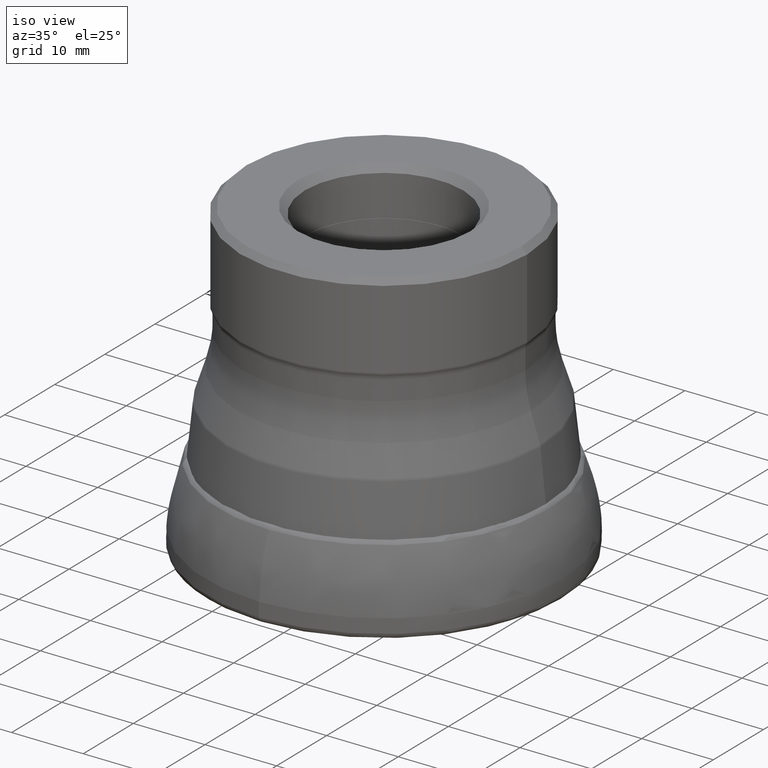
[diagram: clean part render]
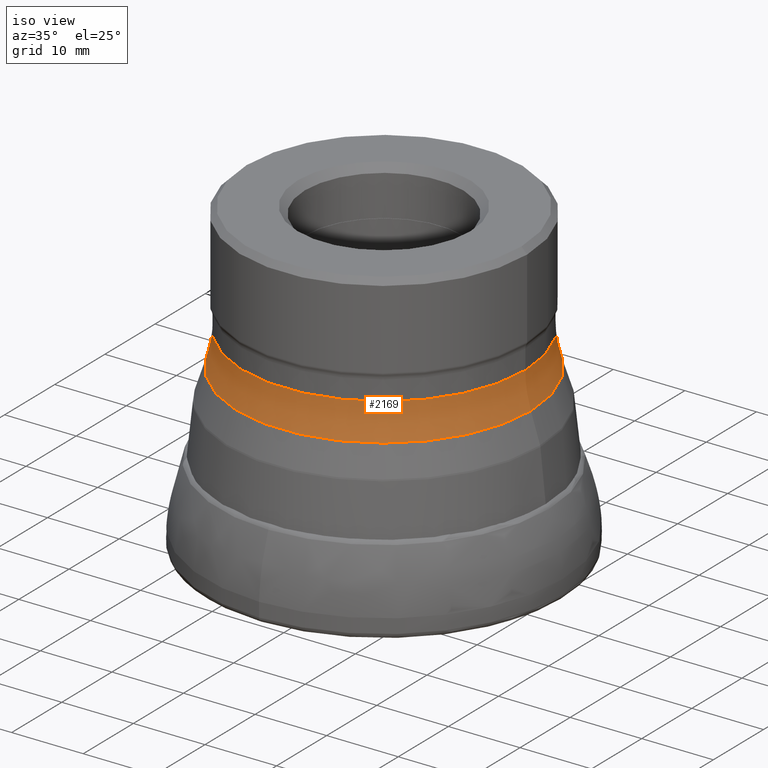
[diagram: same view with one face highlighted and labeled with its STEP entity id]
A machine part, iso view. The second image highlights one B-rep face of the part: STEP entity #2169.
In plain terms, the highlighted toroidal blend (fillet) surface has major radius 35.75 mm and minor (blend) radius 16 mm.
Its self-contained STEP definition (entity closure, byte-faithful):
#20 = DIRECTION ( 'NONE',  ( 1.000000000000000000, 0.0000000000000000000, 0.0000000000000000000 ) ) ;
#89 = CIRCLE ( 'NONE', #818, 20.51878022022010800 ) ;
#193 = EDGE_LOOP ( 'NONE', ( #2988 ) ) ;
#412 = DIRECTION ( 'NONE',  ( -0.0000000000000000000, -0.0000000000000000000, 1.000000000000000000 ) ) ;
#709 = CARTESIAN_POINT ( 'NONE',  ( 0.0000000000000000000, 0.0000000000000000000, -24.61031139857758300 ) ) ;
#818 = AXIS2_PLACEMENT_3D ( 'NONE', #709, #2288, #20 ) ;
#895 = AXIS2_PLACEMENT_3D ( 'NONE', #2558, #2201, #2099 ) ;
#897 = EDGE_CURVE ( 'NONE', #1213, #1213, #2056, .T. ) ;
#1106 = EDGE_LOOP ( 'NONE', ( #2879 ) ) ;
#1195 = FACE_OUTER_BOUND ( 'NONE', #1106, .T. ) ;
#1213 = VERTEX_POINT ( 'NONE', #2638 ) ;
#1415 = EDGE_CURVE ( 'NONE', #1568, #1568, #89, .T. ) ;
#1568 = VERTEX_POINT ( 'NONE', #1957 ) ;
#1698 = TOROIDAL_SURFACE ( 'NONE', #1861, 35.74999999998863100, 15.99999999999529600 ) ;
#1861 = AXIS2_PLACEMENT_3D ( 'NONE', #1977, #412, #2068 ) ;
#1957 = CARTESIAN_POINT ( 'NONE',  ( 20.51878022022010800, 0.0000000000000000000, -24.61031139857758300 ) ) ;
#1977 = CARTESIAN_POINT ( 'NONE',  ( 0.0000000000000000000, 0.0000000000000000000, -29.51030568637537100 ) ) ;
#2056 = CIRCLE ( 'NONE', #895, 19.74999999999333200 ) ;
#2068 = DIRECTION ( 'NONE',  ( 1.000000000000000000, 0.0000000000000000000, 0.0000000000000000000 ) ) ;
#2099 = DIRECTION ( 'NONE',  ( 1.000000000000000000, 0.0000000000000000000, 0.0000000000000000000 ) ) ;
#2169 = ADVANCED_FACE ( 'NONE', ( #2301, #1195 ), #1698, .F. ) ;
#2201 = DIRECTION ( 'NONE',  ( -0.0000000000000000000, -0.0000000000000000000, 1.000000000000000000 ) ) ;
#2288 = DIRECTION ( 'NONE',  ( -0.0000000000000000000, -0.0000000000000000000, 1.000000000000000000 ) ) ;
#2301 = FACE_OUTER_BOUND ( 'NONE', #193, .T. ) ;
#2558 = CARTESIAN_POINT ( 'NONE',  ( 0.0000000000000000000, 0.0000000000000000000, -29.51030568637080300 ) ) ;
#2638 = CARTESIAN_POINT ( 'NONE',  ( 19.74999999999333200, 0.0000000000000000000, -29.51030568637080300 ) ) ;
#2879 = ORIENTED_EDGE ( 'NONE', *, *, #897, .T. ) ;
#2988 = ORIENTED_EDGE ( 'NONE', *, *, #1415, .F. ) ;